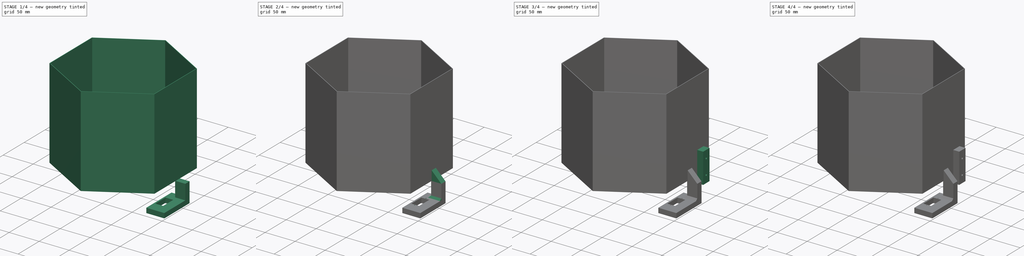
[diagram: build sequence overview — one tinted view per stage of 4, left to right]
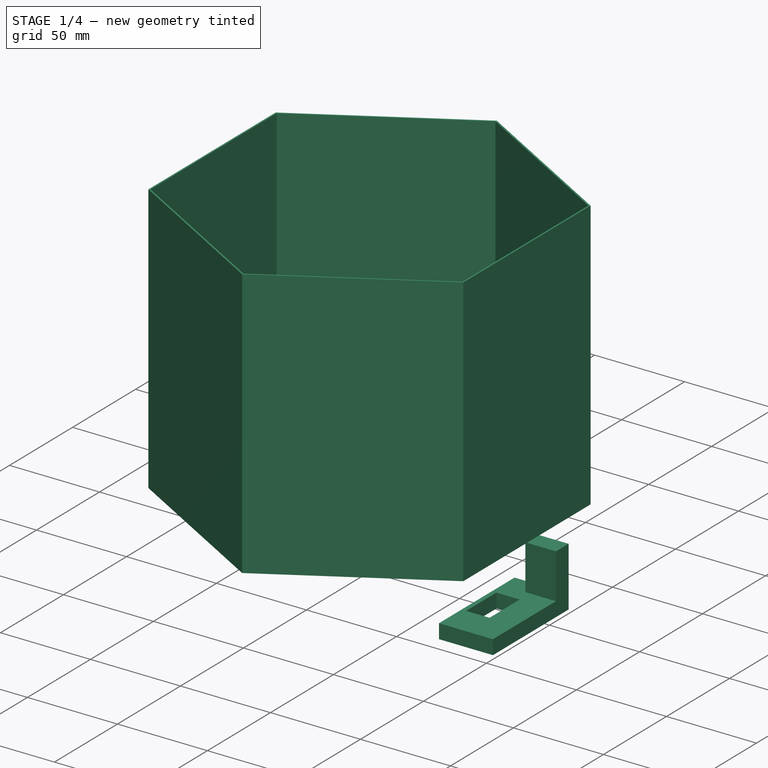
[diagram: stage 1 of 4 — iso view after this stage's code; geometry added in this stage tinted green]
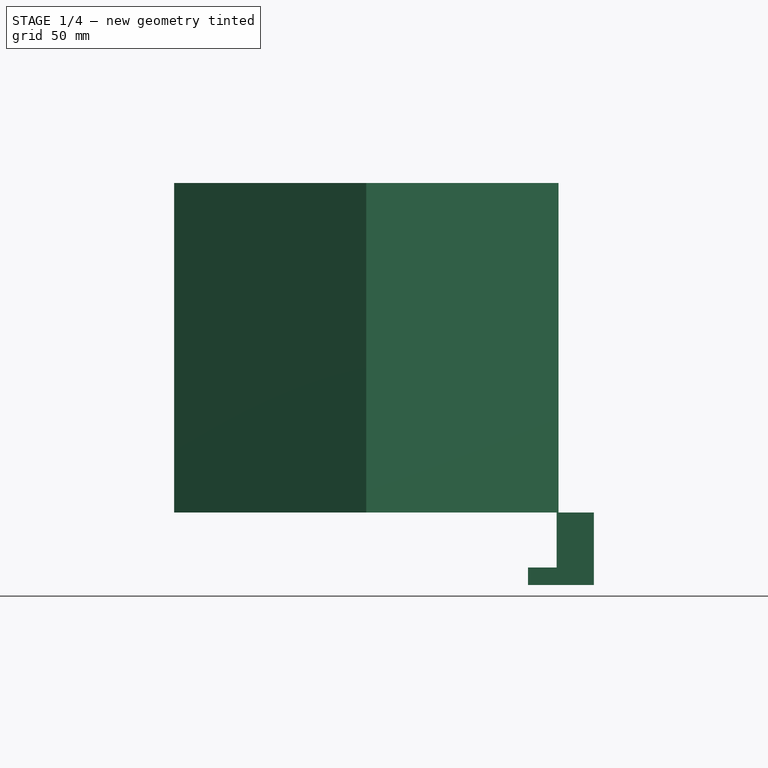
[diagram: stage 1 of 4 — front view after this stage's code; geometry added in this stage tinted green]
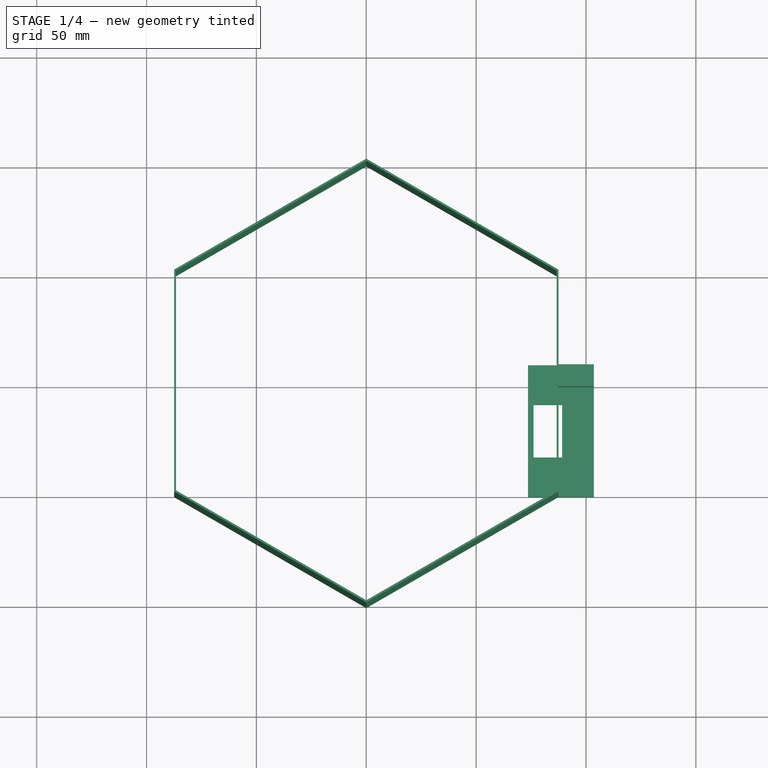
[diagram: stage 1 of 4 — top view after this stage's code; geometry added in this stage tinted green]
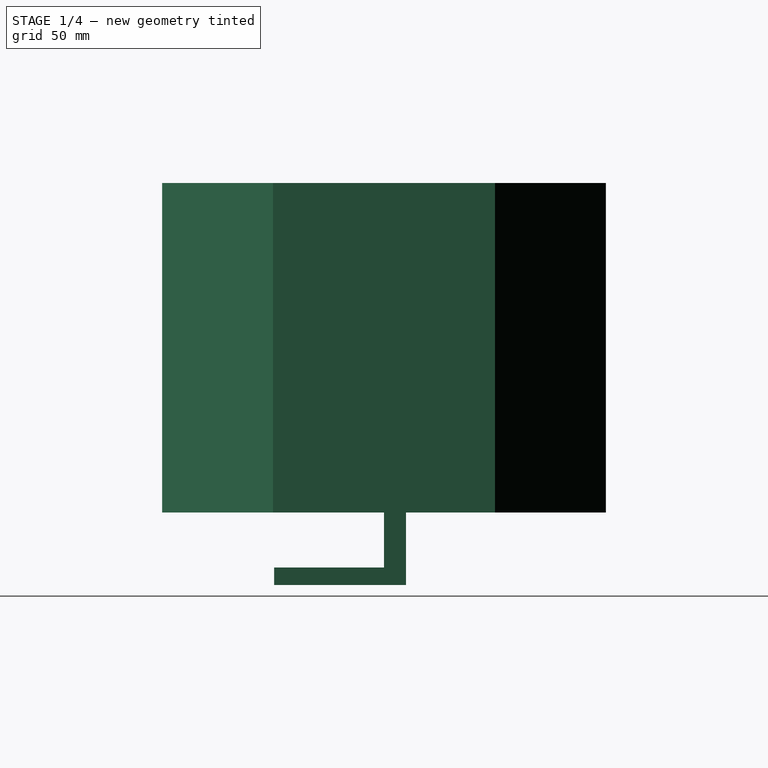
[diagram: stage 1 of 4 — right view after this stage's code; geometry added in this stage tinted green]
FCSTD DOCUMENT  (FreeCAD 0.20R29177 +426 (Git))
Label: ImageRecogBox-v2-cutinparts
License: All rights reserved
LicenseURL: http://en.wikipedia.org/wiki/All_rights_reserved
objects: Sketcher::SketchObject×12, PartDesign::Pad×7, PartDesign::Hole×4, PartDesign::CoordinateSystem×3, PartDesign::Chamfer×2, Part::FeaturePython×2, App::AnnotationLabel×2, PartDesign::Pocket×1, PartDesign::Body×1, App::DocumentObjectGroup×1
note: 46 computed .brp shape members not serialized (recipe doc carries the construction recipe); baked Part::Feature solids carry a one-line shape summary decoded from their .brp

FEATURE [Sketcher::SketchObject] Sketch
  FullyConstrained = true
  MapMode = 5
  Support = -> [XY_Plane]
  sketch-geometry (14):
    g0: LineSegment StartX=86.6025 StartY=50 StartZ=0 EndX=0 EndY=100 EndZ=0
    g1: LineSegment StartX=4.3e-15 StartY=100 StartZ=0 EndX=-86.6025 EndY=50 EndZ=0
    g2: LineSegment StartX=-86.6025 StartY=50 StartZ=0 EndX=-86.6025 EndY=-50 EndZ=0
    g3: LineSegment StartX=-86.6025 StartY=-50 StartZ=0 EndX=0 EndY=-100 EndZ=0
    g4: LineSegment StartX=0 StartY=-100 StartZ=0 EndX=86.6025 EndY=-50 EndZ=0
    g5: LineSegment StartX=86.6025 StartY=-50 StartZ=0 EndX=86.6025 EndY=50 EndZ=0
    g6: Circle CenterX=0 CenterY=0 CenterZ=0 NormalX=0 NormalY=0 NormalZ=1 AngleXU=0 Radius=100
    g7: LineSegment StartX=87.4686 StartY=-50.5 StartZ=0 EndX=87.4686 EndY=50.5 EndZ=0
    g8: LineSegment StartX=87.4686 StartY=50.5 StartZ=0 EndX=-1.42e-14 EndY=101 EndZ=0
    g9: LineSegment StartX=-1.48e-14 StartY=101 StartZ=0 EndX=-87.4686 EndY=50.5 EndZ=0
    g10: LineSegment StartX=-87.4686 StartY=50.5 StartZ=0 EndX=-87.4686 EndY=-50.5 EndZ=0
    g11: LineSegment StartX=-87.4686 StartY=-50.5 StartZ=0 EndX=0 EndY=-101 EndZ=0
    g12: LineSegment StartX=0 StartY=-101 StartZ=0 EndX=87.4686 EndY=-50.5 EndZ=0
    g13: Circle CenterX=0 CenterY=0 CenterZ=0 NormalX=0 NormalY=0 NormalZ=1 AngleXU=0 Radius=101
  constraints (33):
    c: Coincident(g0,g1)
    c: Coincident(g1,g2)
    c: Coincident(g2,g3)
    c: Coincident(g3,g4)
    c: Coincident(g4,g5)
    c: Coincident(g5,g0)
    c: Equal(g0, g1-g5) x5
    c: PointOnObject(g0,g6)
    c: PointOnObject(g1,g6)
    c: PointOnObject(g2,g6)
    c: PointOnObject(g3,g6)
    c: PointOnObject(g4,g6)
    c: PointOnObject(g5,g6)
    c: Coincident(g6,g-1)
    c: Vertical(g5)
    c: Coincident(g7,g8)
    c: Coincident(g8,g9)
    c: Coincident(g9,g10)
    c: Coincident(g10,g11)
    c: Coincident(g11,g12)
    c: Coincident(g12,g7)
    c: Equal(g7, g8-g12) x5
    c: PointOnObject(g7,g13)
    c: PointOnObject(g8,g13)
    c: PointOnObject(g9,g13)
    c: PointOnObject(g10,g13)
    c: PointOnObject(g11,g13)
    c: PointOnObject(g12,g13)
    c: Coincident(g13,g6)
    c: Vertical(g7)
    c: Diameter(g6) = 200
    c: DistanceY(g5,g5) = 100
    c: Diameter(g13) = 202
FEATURE [PartDesign::Pad] Pad
  Direction = (0,0,1)
  Length = 150
  Length2 = 10
  Profile = -> Sketch
  ReferenceAxis = -> Sketch [N_Axis]
  Type = 0
FEATURE [Sketcher::SketchObject] Sketch001
  ExternalGeometry = -> [Pad]
  FullyConstrained = true
  MapMode = 5
  Placement = pos=(0,0,0) rot=(1,0,0;3.14159rad)
  Support = -> [Pad]
  sketch-geometry (4):
    g0: LineSegment StartX=103.603 StartY=0 StartZ=0 EndX=86.6025 EndY=0 EndZ=0
    g1: LineSegment StartX=86.6025 StartY=0 StartZ=0 EndX=86.6025 EndY=-10 EndZ=0
    g2: LineSegment StartX=86.6025 StartY=-10 StartZ=0 EndX=103.603 EndY=-10 EndZ=0
    g3: LineSegment StartX=103.603 StartY=-10 StartZ=0 EndX=103.603 EndY=0 EndZ=0
  constraints (12):
    c: Coincident(g0,g1)
    c: Coincident(g1,g2)
    c: Coincident(g2,g3)
    c: Coincident(g3,g0)
    c: Horizontal(g0)
    c: Horizontal(g2)
    c: Vertical(g1)
    c: Vertical(g3)
    c: PointOnObject(g1,g-3)
    c: DistanceX(g2,g2) = 17
    c: DistanceY(g3,g3) = 10
    c: PointOnObject(g0,g-1)
FEATURE [PartDesign::Pad] Pad001
  BaseFeature = -> Pad
  Direction = (0,0,-1)
  Length = 25
  Length2 = 10
  Profile = -> Sketch001
  ReferenceAxis = -> Sketch001 [N_Axis]
  Type = 0
FEATURE [Sketcher::SketchObject] Sketch002
  ExternalGeometry = -> [Pad001]
  FullyConstrained = true
  MapMode = 5
  Placement = pos=(0,0,-25) rot=(1,0,0;3.14159rad)
  Support = -> [Pad001]
  sketch-geometry (4):
    g0: LineSegment StartX=103.603 StartY=-10 StartZ=0 EndX=73.6025 EndY=-10 EndZ=0
    g1: LineSegment StartX=73.6025 StartY=-10 StartZ=0 EndX=73.6025 EndY=50 EndZ=0
    g2: LineSegment StartX=73.6025 StartY=50 StartZ=0 EndX=103.603 EndY=50 EndZ=0
    g3: LineSegment StartX=103.603 StartY=50 StartZ=0 EndX=103.603 EndY=-10 EndZ=0
  constraints (11):
    c: Coincident(g0,g1)
    c: Coincident(g2,g3)
    c: Coincident(g3,g0)
    c: Horizontal(g0)
    c: Vertical(g3)
    c: Coincident(g0,g-4)
    c: Coincident(g2,g1)
    c: Horizontal(g2)
    c: Horizontal(g2,g-6)
    c: Vertical(g1)
    c: DistanceX(g0,g0) = 30
FEATURE [PartDesign::Pad] Pad002
  BaseFeature = -> Pad001
  Direction = (0,0,-1)
  Length = 8
  Length2 = 10
  Profile = -> Sketch002
  ReferenceAxis = -> Sketch002 [N_Axis]
  Type = 0
FEATURE [Sketcher::SketchObject] Sketch003
  ExternalGeometry = -> [Pad002]
  FullyConstrained = true
  MapMode = 5
  Placement = pos=(0,0,-25) rot=(0,0,1;0rad)
  Support = -> [Pad002]
  sketch-geometry (6):
    g0: LineSegment StartX=76.1025 StartY=-8 StartZ=0 EndX=89.1025 EndY=-8 EndZ=0
    g1: LineSegment StartX=89.1025 StartY=-8 StartZ=0 EndX=89.1025 EndY=-32 EndZ=0
    g2: LineSegment StartX=89.1025 StartY=-32 StartZ=0 EndX=76.1025 EndY=-32 EndZ=0
    g3: LineSegment StartX=76.1025 StartY=-32 StartZ=0 EndX=76.1025 EndY=-8 EndZ=0
    g4: GeomPoint X=82.6025 Y=-20 Z=0
    g5: GeomPoint X=88.6025 Y=-20 Z=0
  constraints (14):
    c: Coincident(g0,g1)
    c: Coincident(g1,g2)
    c: Coincident(g2,g3)
    c: Coincident(g3,g0)
    c: Horizontal(g0)
    c: Horizontal(g2)
    c: Vertical(g1)
    c: Vertical(g3)
    c: DistanceY(g1,g1) = 24
    c: DistanceX(g2,g2) = 13
    c: Symmetric(g1,g0,g4)
    c: Symmetric(g-5,g-3,g5)
    c: DistanceX(g4,g5) = 6
    c: Horizontal(g5,g4)
FEATURE [PartDesign::Pocket] Pocket
  BaseFeature = -> Pad002
  Direction = (0,0,-1)
  Length = 19
  Length2 = 5
  Profile = -> Sketch003
  ReferenceAxis = -> Sketch003 [N_Axis]
  Type = 1
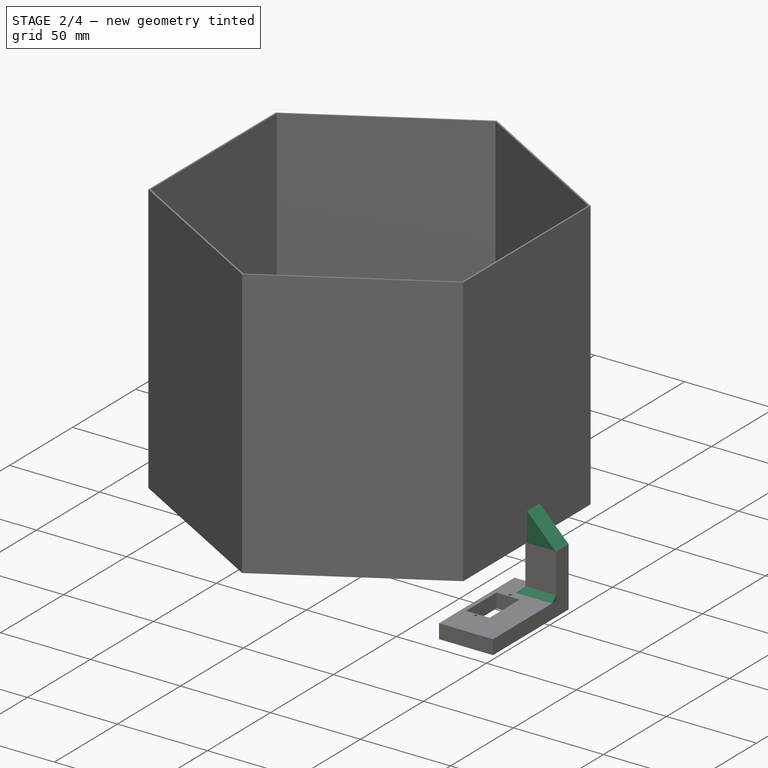
[diagram: stage 2 of 4 — iso view after this stage's code; geometry added in this stage tinted green]
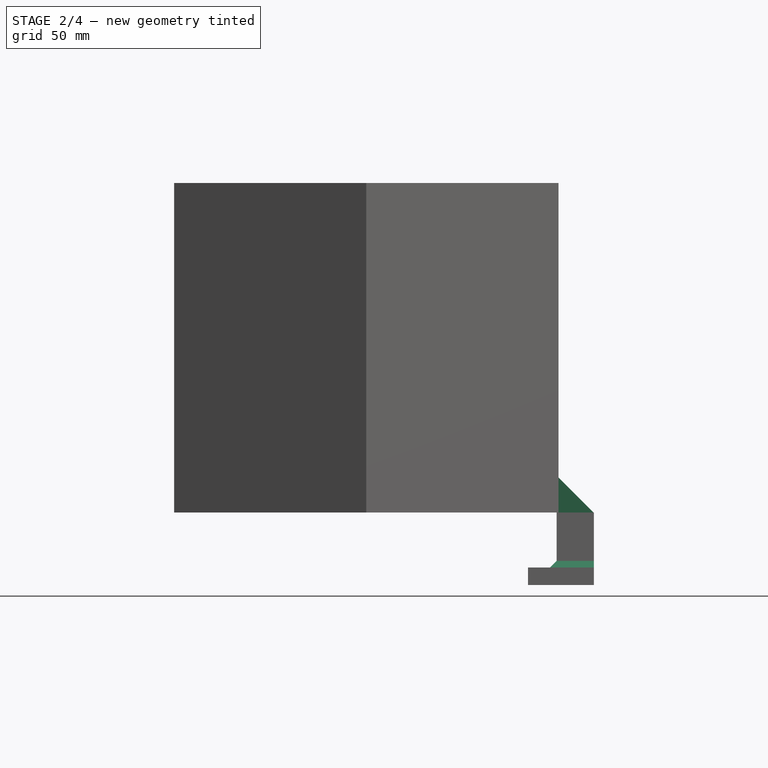
[diagram: stage 2 of 4 — front view after this stage's code; geometry added in this stage tinted green]
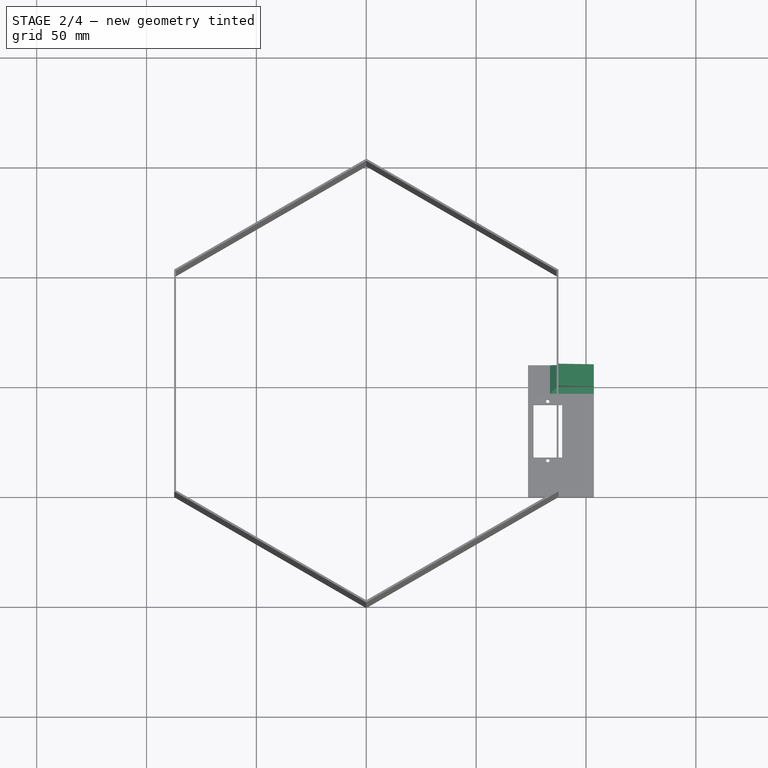
[diagram: stage 2 of 4 — top view after this stage's code; geometry added in this stage tinted green]
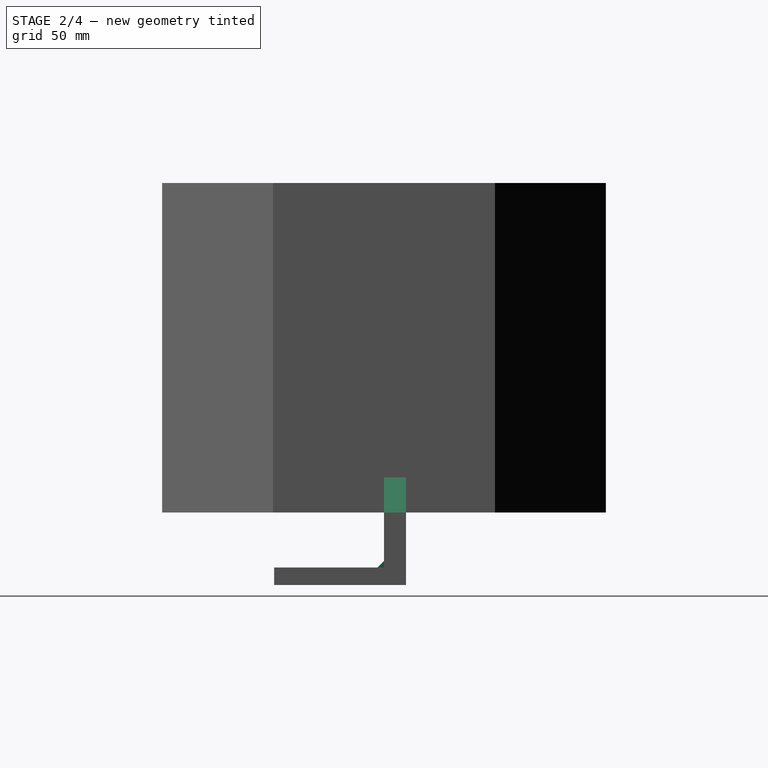
[diagram: stage 2 of 4 — right view after this stage's code; geometry added in this stage tinted green]
FEATURE [Sketcher::SketchObject] Sketch004
  ExternalGeometry = -> [Pocket]
  FullyConstrained = false
  MapMode = 5
  Placement = pos=(0,0,-25) rot=(0,0,1;0rad)
  Support = -> [Pocket]
  sketch-geometry (5):
    g0: GeomPoint X=82.6025 Y=-6.3796 Z=0
    g1: GeomPoint X=82.6025 Y=-33.3796 Z=0
    g2: Circle CenterX=82.6025 CenterY=-6.3796 CenterZ=0 NormalX=0 NormalY=0 NormalZ=1 AngleXU=0 Radius=1
    g3: Circle CenterX=82.6025 CenterY=-33.3796 CenterZ=0 NormalX=0 NormalY=0 NormalZ=1 AngleXU=0 Radius=1
    g4: GeomPoint X=82.6025 Y=-20 Z=0
  constraints (8):
    c: DistanceY(g1,g0) = 27
    c: Coincident(g2,g0)
    c: Coincident(g3,g1)
    c: Equal(g3,g2)
    c: Diameter(g2) = 2
    c: Symmetric(g-6,g-5,g4)
    c: Vertical(g2,g3)
    c: Vertical(g3,g4)
FEATURE [PartDesign::Hole] Hole
  BaseFeature = -> Pocket
  CustomThreadClearance = 0
  Depth = 25
  DepthType = 0
  Diameter = 1.6
  DrillForDepth = false
  DrillPoint = 1
  DrillPointAngle = 118
  HoleCutCountersinkAngle = 90
  HoleCutCustomValues = false
  HoleCutDepth = 0
  HoleCutDiameter = 6.1
  HoleCutType = 0
  ModelThread = false
  Profile = -> Sketch004
  Tapered = false
  TaperedAngle = 90
  ThreadClass = 0
  ThreadDepth = 25
  ThreadDepthType = 0
  ThreadDirection = 0
  ThreadFit = 0
  ThreadSize = 6
  ThreadType = 1
  Threaded = true
  UseCustomThreadClearance = false
FEATURE [PartDesign::CoordinateSystem] LCS_1
  AttacherType = Attacher::AttachEngine3D
  MapMode = 45
  Placement = pos=(82.6025,-6.3796,-25) rot=(0,0,1;0rad)
  Support = -> [Hole]
FEATURE [PartDesign::CoordinateSystem] LCS_2  label="LCS_origin"
  AttacherType = Attacher::AttachEngine3D
FEATURE [PartDesign::Chamfer] Chamfer
  Angle = 45
  Base = -> Hole [Edge4]
  BaseFeature = -> Hole
  ChamferType = 0
  FlipDirection = false
  Size = 16
  Size2 = 1
  SupportTransform = false
  UseAllEdges = false
FEATURE [PartDesign::Chamfer] Chamfer001
  Angle = 45
  Base = -> Chamfer [Edge12,Edge49]
  BaseFeature = -> Chamfer
  ChamferType = 0
  FlipDirection = false
  Size = 3
  Size2 = 1
  SupportTransform = false
  UseAllEdges = false
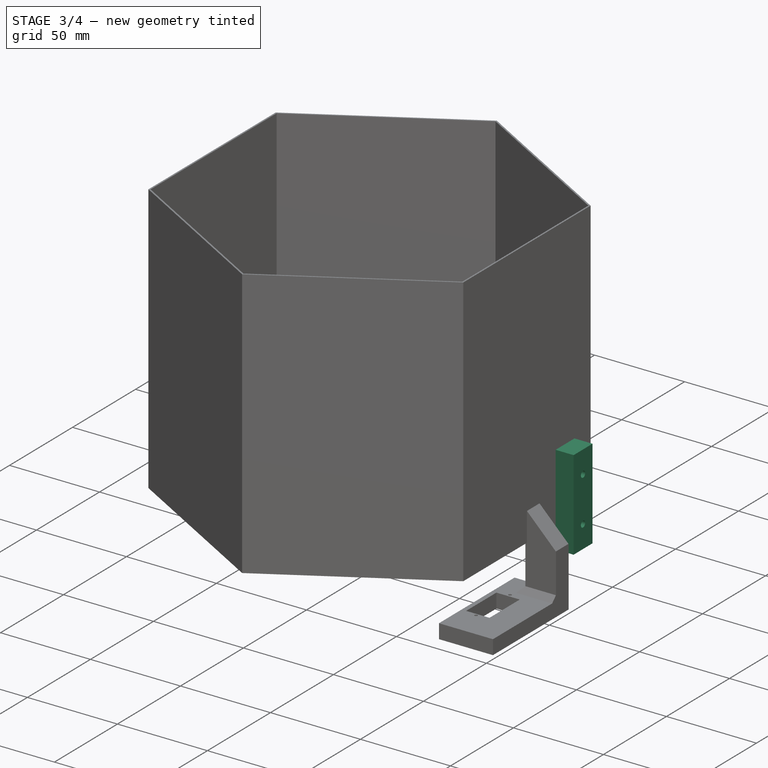
[diagram: stage 3 of 4 — iso view after this stage's code; geometry added in this stage tinted green]
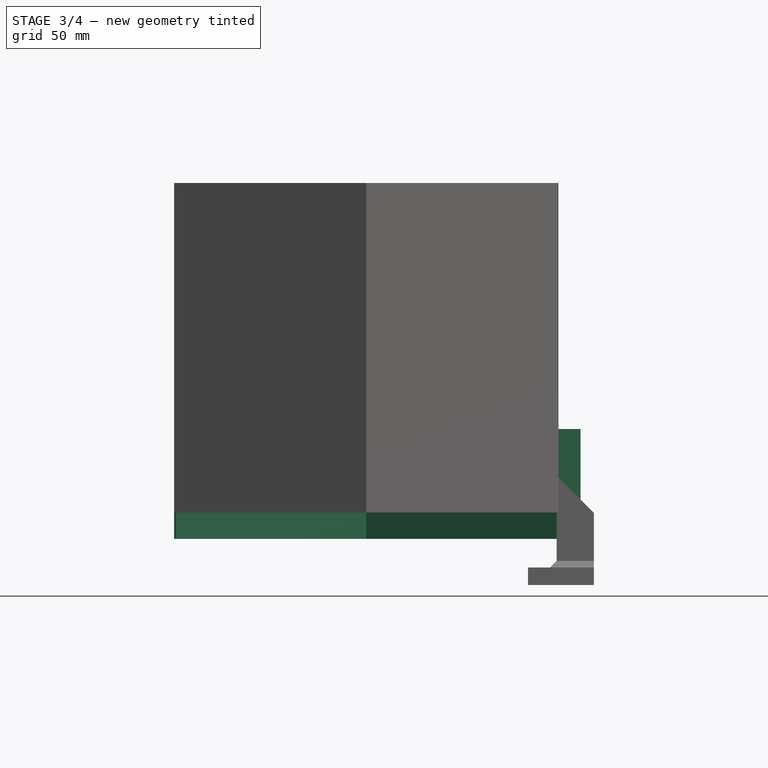
[diagram: stage 3 of 4 — front view after this stage's code; geometry added in this stage tinted green]
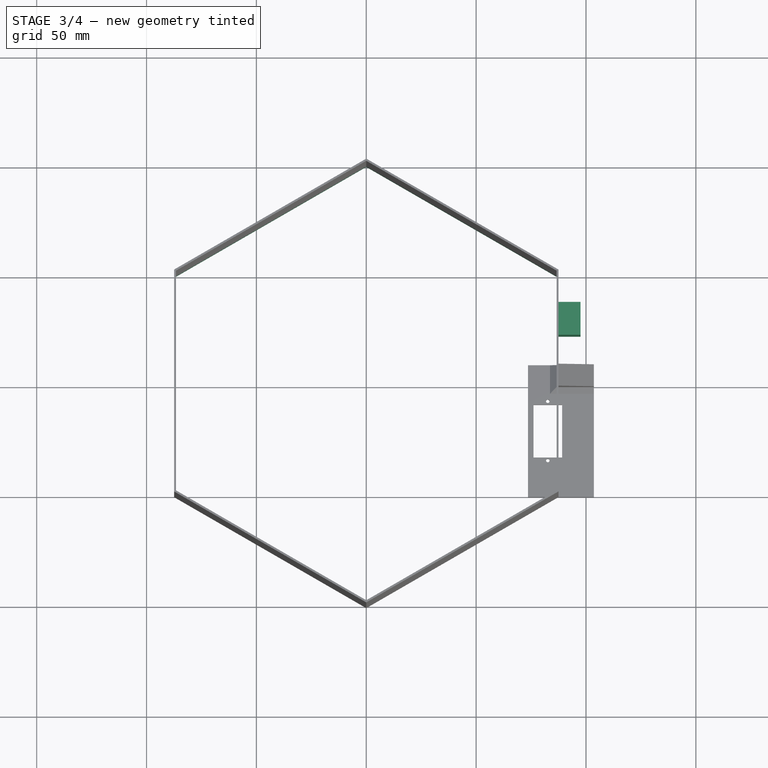
[diagram: stage 3 of 4 — top view after this stage's code; geometry added in this stage tinted green]
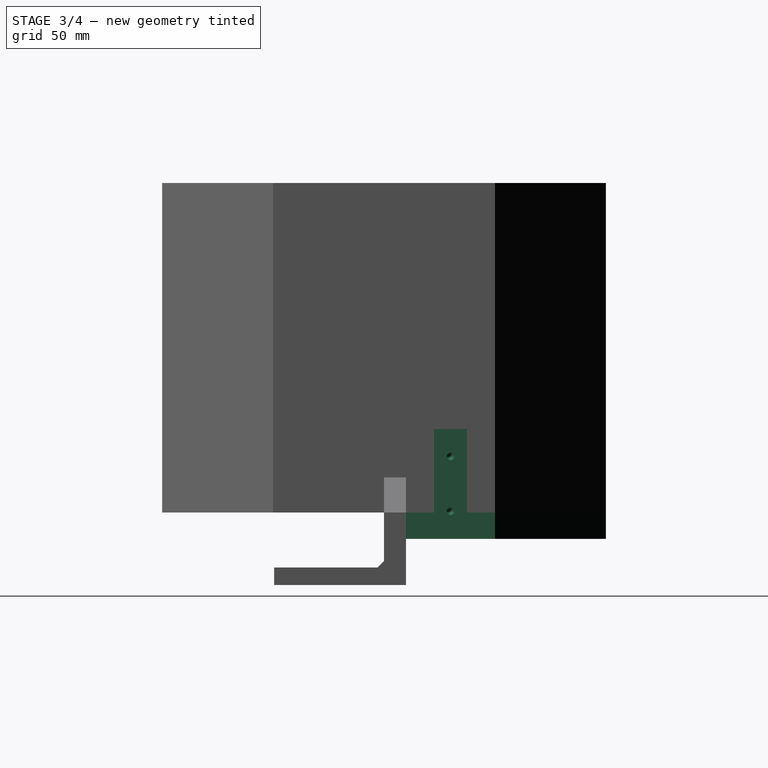
[diagram: stage 3 of 4 — right view after this stage's code; geometry added in this stage tinted green]
FEATURE [Sketcher::SketchObject] Sketch005
  ExternalGeometry = -> [Chamfer001]
  FullyConstrained = true
  MapMode = 5
  Placement = pos=(0,0,0) rot=(1,0,0;3.14159rad)
  Support = -> [Chamfer001]
  sketch-geometry (8):
    g0: LineSegment StartX=86.6025 StartY=-10 StartZ=0 EndX=86.6025 EndY=-50 EndZ=0
    g1: LineSegment StartX=86.6025 StartY=-50 StartZ=0 EndX=0 EndY=-100 EndZ=0
    g2: LineSegment StartX=0 StartY=-100 StartZ=0 EndX=-86.6025 EndY=-50 EndZ=0
    g3: LineSegment StartX=-86.6025 StartY=-50 StartZ=0 EndX=-87.4686 EndY=-50.5 EndZ=0
    g4: LineSegment StartX=-87.4686 StartY=-50.5 StartZ=0 EndX=-1.42e-14 EndY=-101 EndZ=0
    g5: LineSegment StartX=-1.42e-14 StartY=-101 StartZ=0 EndX=87.4686 EndY=-50.5 EndZ=0
    g6: LineSegment StartX=87.4686 StartY=-50.5 StartZ=0 EndX=87.4686 EndY=-10 EndZ=0
    g7: LineSegment StartX=87.4686 StartY=-10 StartZ=0 EndX=86.6025 EndY=-10 EndZ=0
  constraints (16):
    c: Coincident(g-7,g0)
    c: Coincident(g0,g-7)
    c: Coincident(g0,g1)
    c: Coincident(g1,g-4)
    c: Coincident(g1,g2)
    c: Coincident(g2,g-3)
    c: Coincident(g2,g3)
    c: Coincident(g3,g-5)
    c: Coincident(g3,g4)
    c: Coincident(g4,g-6)
    c: Coincident(g4,g5)
    c: Coincident(g5,g-8)
    c: Coincident(g5,g6)
    c: Coincident(g6,g-8)
    c: Coincident(g6,g7)
    c: Coincident(g7,g0)
FEATURE [PartDesign::Pad] Pad003
  BaseFeature = -> Chamfer001
  Direction = (0,0,-1)
  Length = 12
  Length2 = 10
  Profile = -> Sketch005
  ReferenceAxis = -> Sketch005 [N_Axis]
  Type = 0
FEATURE [Sketcher::SketchObject] Sketch006
  ExternalGeometry = -> [Pad003]
  FullyConstrained = true
  MapMode = 5
  Placement = pos=(87.4686,0,0) rot=(0.57735,0.57735,0.57735;2.0944rad)
  Support = -> [Pad003]
  sketch-geometry (6):
    g0: GeomPoint X=30.25 Y=-12 Z=0
    g1: LineSegment StartX=37.75 StartY=-12 StartZ=0 EndX=22.75 EndY=-12 EndZ=0
    g2: LineSegment StartX=22.75 StartY=-12 StartZ=0 EndX=22.75 EndY=38 EndZ=0
    g3: LineSegment StartX=22.75 StartY=38 StartZ=0 EndX=37.75 EndY=38 EndZ=0
    g4: LineSegment StartX=37.75 StartY=38 StartZ=0 EndX=37.75 EndY=-12 EndZ=0
    g5: GeomPoint X=22.75 Y=13 Z=0
  constraints (13):
    c: Symmetric(g-3,g-3,g0)
    c: Coincident(g1,g2)
    c: Coincident(g2,g3)
    c: Coincident(g3,g4)
    c: Coincident(g4,g1)
    c: Horizontal(g1)
    c: Horizontal(g3)
    c: Vertical(g2)
    c: Vertical(g4)
    c: Symmetric(g1,g1,g0)
    c: DistanceX(g1,g1) = 15
    c: DistanceY(g4,g4) = 50
    c: Symmetric(g2,g1,g5)
FEATURE [PartDesign::Pad] Pad004
  BaseFeature = -> Pad003
  Direction = (1,0,0)
  Length = 10
  Length2 = 10
  Profile = -> Sketch006
  ReferenceAxis = -> Sketch006 [N_Axis]
  Type = 0
FEATURE [Sketcher::SketchObject] Sketch007
  ExternalGeometry = -> [Pad004]
  FullyConstrained = false
  MapMode = 5
  Placement = pos=(97.4686,0,0) rot=(0.57735,0.57735,0.57735;2.0944rad)
  Support = -> [Pad004]
  sketch-geometry (3):
    g0: Circle CenterX=30.25 CenterY=25.5 CenterZ=0 NormalX=0 NormalY=0 NormalZ=1 AngleXU=0 Radius=1.58506
    g1: GeomPoint X=22.75 Y=13 Z=0
    g2: Circle CenterX=30.25 CenterY=0.5 CenterZ=0 NormalX=0 NormalY=0 NormalZ=1 AngleXU=0 Radius=1.58506
  constraints (3):
    c: Symmetric(g-3,g-3,g1)
    c: Symmetric(g-4,g1,g0)
    c: Symmetric(g-4,g1,g2)
FEATURE [PartDesign::Hole] Hole001
  BaseFeature = -> Pad004
  CustomThreadClearance = 0
  Depth = 6
  DepthType = 0
  Diameter = 3.4
  DrillForDepth = false
  DrillPoint = 1
  DrillPointAngle = 118
  HoleCutCountersinkAngle = 90
  HoleCutCustomValues = false
  HoleCutDepth = 0
  HoleCutDiameter = 6.1
  HoleCutType = 0
  ModelThread = false
  Profile = -> Sketch007
  Tapered = false
  TaperedAngle = 90
  ThreadClass = 0
  ThreadDepth = 6
  ThreadDepthType = 0
  ThreadDirection = 0
  ThreadFit = 0
  ThreadSize = 9
  ThreadType = 1
  Threaded = false
  UseCustomThreadClearance = false
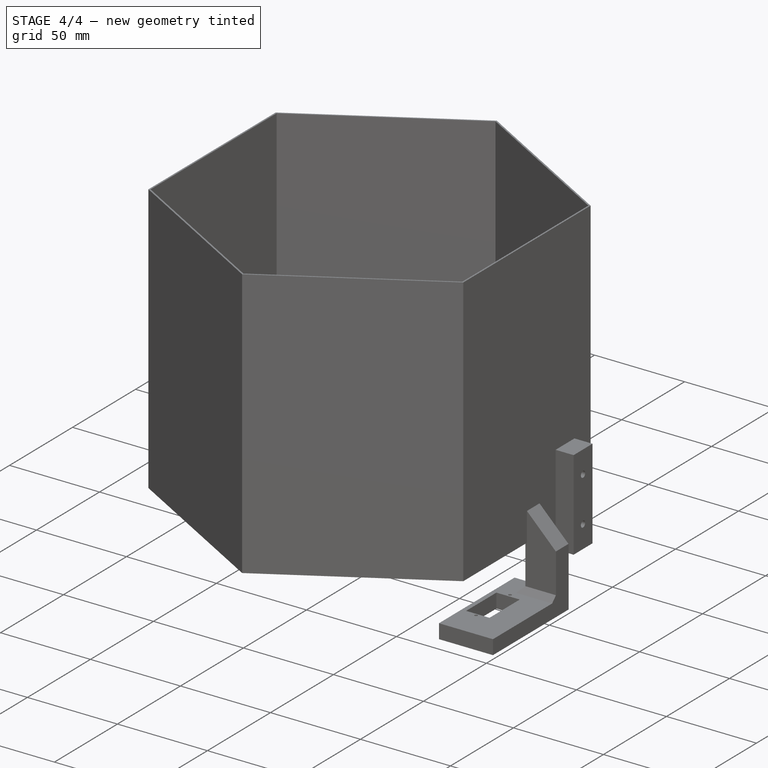
[diagram: stage 4 of 4 — iso view after this stage's code; geometry added in this stage tinted green]
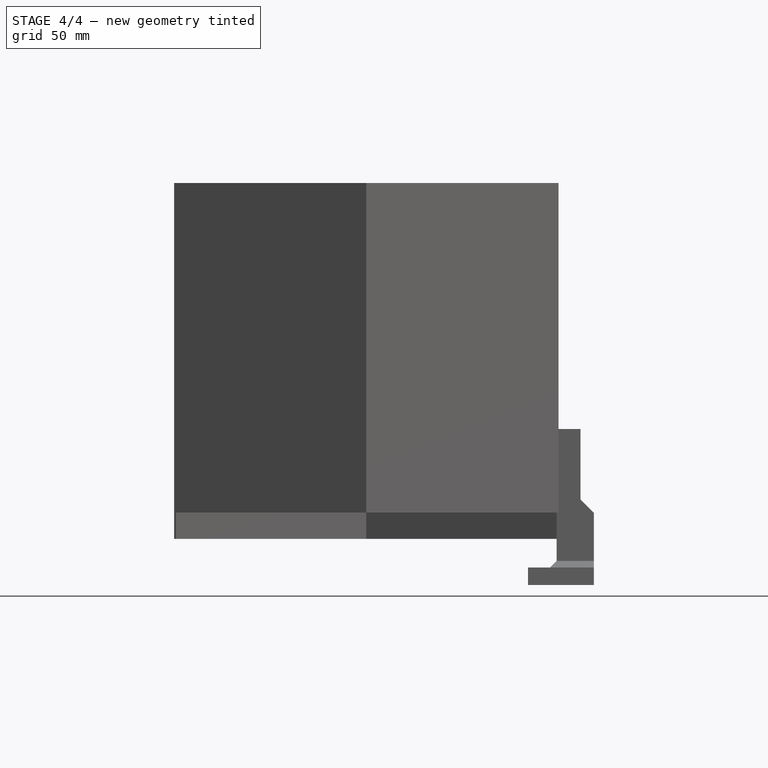
[diagram: stage 4 of 4 — front view after this stage's code; geometry added in this stage tinted green]
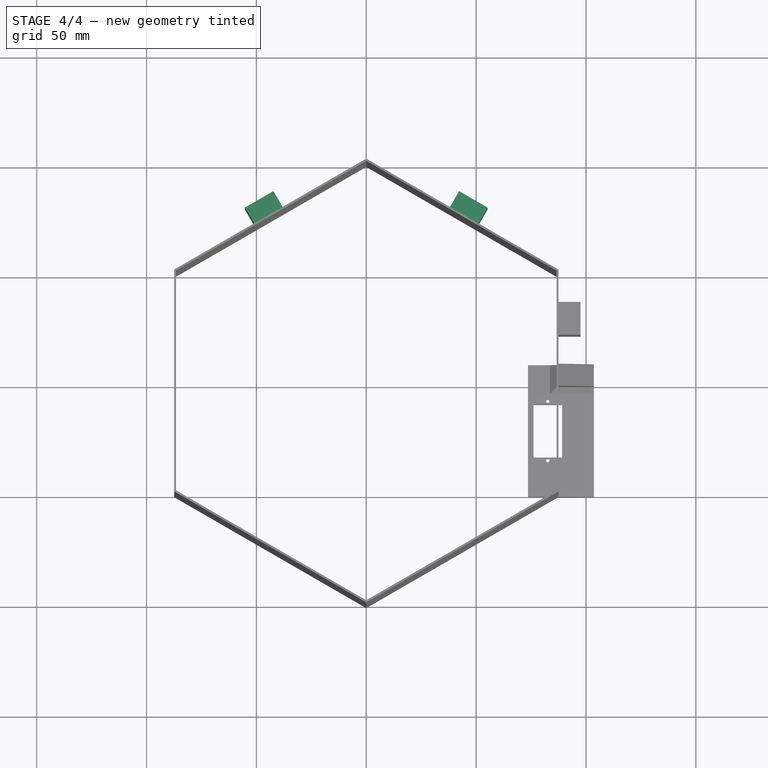
[diagram: stage 4 of 4 — top view after this stage's code; geometry added in this stage tinted green]
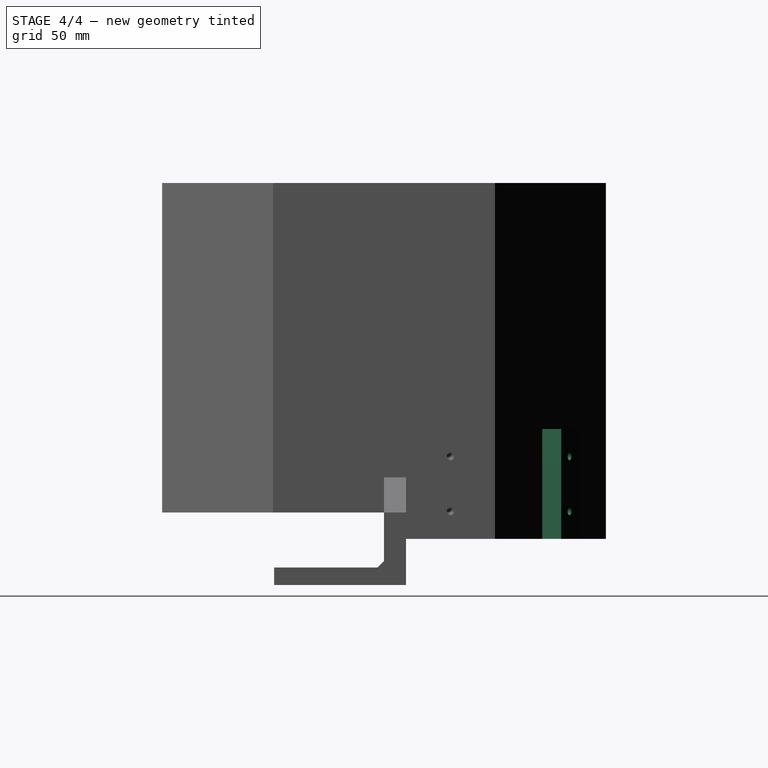
[diagram: stage 4 of 4 — right view after this stage's code; geometry added in this stage tinted green]
FEATURE [PartDesign::CoordinateSystem] LCS_3
  AttacherType = Attacher::AttachEngine3D
  MapMode = 11
  Placement = pos=(97.4686,30.25,25.5) rot=(0.57735,0.57735,0.57735;2.0944rad)
  Support = -> [Hole001]
FEATURE [Part::FeaturePython] DistPoints  # WARN: FeaturePython — macro-defined, semantics opaque (R4)
FEATURE [App::AnnotationLabel] MeasureLbl
  BasePosition = (97.4686,37.75,-2)
  LabelText = D = 20,00 mm
  TextPosition = (0,0,0)
FEATURE [Sketcher::SketchObject] Sketch008
  ExternalGeometry = -> [Hole001]
  FullyConstrained = true
  MapMode = 5
  Placement = pos=(43.7343,75.75,0) rot=(0.186157,0.694747,0.694747;2.77349rad)
  Support = -> [Hole001]
  sketch-geometry (5):
    g0: GeomPoint X=-2.7e-15 Y=-12 Z=0
    g1: LineSegment StartX=-7.5 StartY=38 StartZ=0 EndX=7.5 EndY=38 EndZ=0
    g2: LineSegment StartX=7.5 StartY=38 StartZ=0 EndX=7.5 EndY=-12 EndZ=0
    g3: LineSegment StartX=7.5 StartY=-12 StartZ=0 EndX=-7.5 EndY=-12 EndZ=0
    g4: LineSegment StartX=-7.5 StartY=-12 StartZ=0 EndX=-7.5 EndY=38 EndZ=0
  constraints (12):
    c: Symmetric(g-3,g-3,g0)
    c: Coincident(g1,g2)
    c: Coincident(g2,g3)
    c: Coincident(g3,g4)
    c: Coincident(g4,g1)
    c: Horizontal(g1)
    c: Horizontal(g3)
    c: Vertical(g2)
    c: Vertical(g4)
    c: DistanceX(g1,g1) = 15
    c: DistanceY(g2,g2) = 50
    c: Symmetric(g3,g2,g0)
FEATURE [PartDesign::Pad] Pad005
  BaseFeature = -> Hole001
  Direction = (0.5,0.866025,-1e-16)
  Length = 10
  Length2 = 10
  Profile = -> Sketch008
  ReferenceAxis = -> Sketch008 [N_Axis]
  Type = 0
FEATURE [Sketcher::SketchObject] Sketch009
  ExternalGeometry = -> [Pad005]
  FullyConstrained = false
  MapMode = 5
  Placement = pos=(48.7343,84.4103,0) rot=(0.186157,0.694747,0.694747;2.77349rad)
  Support = -> [Pad005]
  sketch-geometry (3):
    g0: Circle CenterX=-1.06e-14 CenterY=25.5 CenterZ=0 NormalX=0 NormalY=0 NormalZ=1 AngleXU=0 Radius=1.89055
    g1: GeomPoint X=-7.5 Y=13 Z=0
    g2: Circle CenterX=-1.04e-14 CenterY=0.5 CenterZ=0 NormalX=0 NormalY=0 NormalZ=1 AngleXU=0 Radius=1.89055
  constraints (3):
    c: Symmetric(g-3,g-4,g1)
    c: Symmetric(g-3,g1,g0)
    c: Symmetric(g1,g-4,g2)
FEATURE [PartDesign::Hole] Hole002
  BaseFeature = -> Pad005
  CustomThreadClearance = 0
  Depth = 6
  DepthType = 0
  Diameter = 3.4
  DrillForDepth = false
  DrillPoint = 1
  DrillPointAngle = 118
  HoleCutCountersinkAngle = 90
  HoleCutCustomValues = false
  HoleCutDepth = 0
  HoleCutDiameter = 6.1
  HoleCutType = 0
  ModelThread = false
  Profile = -> Sketch009
  Tapered = false
  TaperedAngle = 90
  ThreadClass = 0
  ThreadDepth = 6
  ThreadDepthType = 0
  ThreadDirection = 0
  ThreadFit = 0
  ThreadSize = 9
  ThreadType = 1
  Threaded = false
  UseCustomThreadClearance = false
FEATURE [Sketcher::SketchObject] Sketch010
  ExternalGeometry = -> [Hole002]
  FullyConstrained = true
  MapMode = 5
  Placement = pos=(-43.7343,75.75,0) rot=(-0.186157,0.694747,0.694747;3.50969rad)
  Support = -> [Hole002]
  sketch-geometry (5):
    g0: GeomPoint X=5.6e-15 Y=-12 Z=0
    g1: LineSegment StartX=-7.5 StartY=-12 StartZ=0 EndX=7.5 EndY=-12 EndZ=0
    g2: LineSegment StartX=7.5 StartY=-12 StartZ=0 EndX=7.5 EndY=38 EndZ=0
    g3: LineSegment StartX=7.5 StartY=38 StartZ=0 EndX=-7.5 EndY=38 EndZ=0
    g4: LineSegment StartX=-7.5 StartY=38 StartZ=0 EndX=-7.5 EndY=-12 EndZ=0
  constraints (12):
    c: Symmetric(g-3,g-3,g0)
    c: Coincident(g1,g2)
    c: Coincident(g2,g3)
    c: Coincident(g3,g4)
    c: Coincident(g4,g1)
    c: Horizontal(g1)
    c: Horizontal(g3)
    c: Vertical(g2)
    c: Vertical(g4)
    c: Symmetric(g1,g1,g0)
    c: DistanceY(g2,g2) = 50
    c: DistanceX(g3,g3) = 15
FEATURE [PartDesign::Pad] Pad006
  BaseFeature = -> Hole002
  Direction = (-0.5,0.866025,0)
  Length = 10
  Length2 = 10
  Profile = -> Sketch010
  ReferenceAxis = -> Sketch010 [N_Axis]
  Type = 0
FEATURE [Sketcher::SketchObject] Sketch011
  ExternalGeometry = -> [Pad006]
  FullyConstrained = false
  MapMode = 5
  Placement = pos=(-48.7343,84.4103,0) rot=(-0.186157,0.694747,0.694747;3.50969rad)
  Support = -> [Pad006]
  sketch-geometry (3):
    g0: GeomPoint X=-7.5 Y=13 Z=0
    g1: Circle CenterX=3.62e-14 CenterY=25.5 CenterZ=0 NormalX=0 NormalY=0 NormalZ=1 AngleXU=0 Radius=1.24684
    g2: Circle CenterX=3.54e-14 CenterY=0.5 CenterZ=0 NormalX=0 NormalY=0 NormalZ=1 AngleXU=0 Radius=1.24684
  constraints (3):
    c: Symmetric(g-3,g-4,g0)
    c: Symmetric(g-3,g0,g1)
    c: Symmetric(g-4,g0,g2)
FEATURE [PartDesign::Hole] Hole003
  BaseFeature = -> Pad006
  CustomThreadClearance = 0
  Depth = 6
  DepthType = 0
  Diameter = 3.4
  DrillForDepth = false
  DrillPoint = 1
  DrillPointAngle = 118
  HoleCutCountersinkAngle = 90
  HoleCutCustomValues = false
  HoleCutDepth = 0
  HoleCutDiameter = 6.1
  HoleCutType = 0
  ModelThread = false
  Profile = -> Sketch011
  Tapered = false
  TaperedAngle = 90
  ThreadClass = 0
  ThreadDepth = 6
  ThreadDepthType = 0
  ThreadDirection = 0
  ThreadFit = 0
  ThreadSize = 9
  ThreadType = 1
  Threaded = false
  UseCustomThreadClearance = false
FEATURE [PartDesign::Body] Body  label="ImageRecogBox-body"
  Group = -> [Sketch,Pad,Sketch001,Pad001,Sketch002,Pad002,Sketch003,Pocket,Sketch004,Hole,LCS_1,LCS_2,Chamfer,Chamfer001,Sketch005,Pad003,Sketch006,Pad004,Sketch007,Hole001,LCS_3,Sketch008,Pad005,Sketch009,Hole002,Sketch010,Pad006,Sketch011,Hole003]
  Origin = -> Origin
  Tip = -> Hole003
FEATURE [Part::FeaturePython] DistPoints001  # WARN: FeaturePython — macro-defined, semantics opaque (R4)
FEATURE [App::AnnotationLabel] MeasureLbl001
  BasePosition = (42.2391,88.1603,13)
  LabelText = D = 50,00 mm
  TextPosition = (0,0,0)
FEATURE [App::DocumentObjectGroup] Measures
  Group = -> [DistPoints,MeasureLbl,DistPoints001,MeasureLbl001]
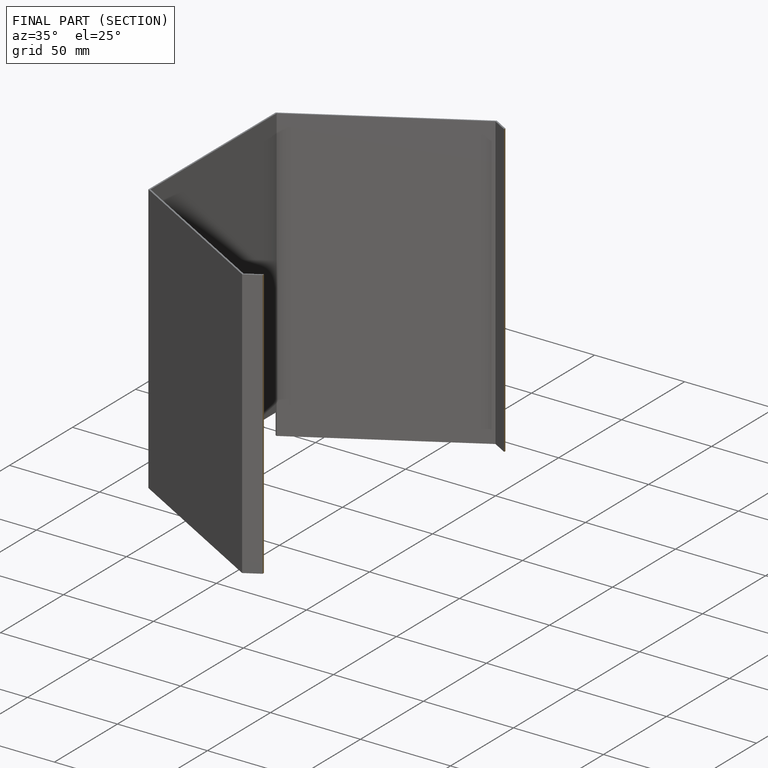
[diagram: finished part — half-section view (interior)]
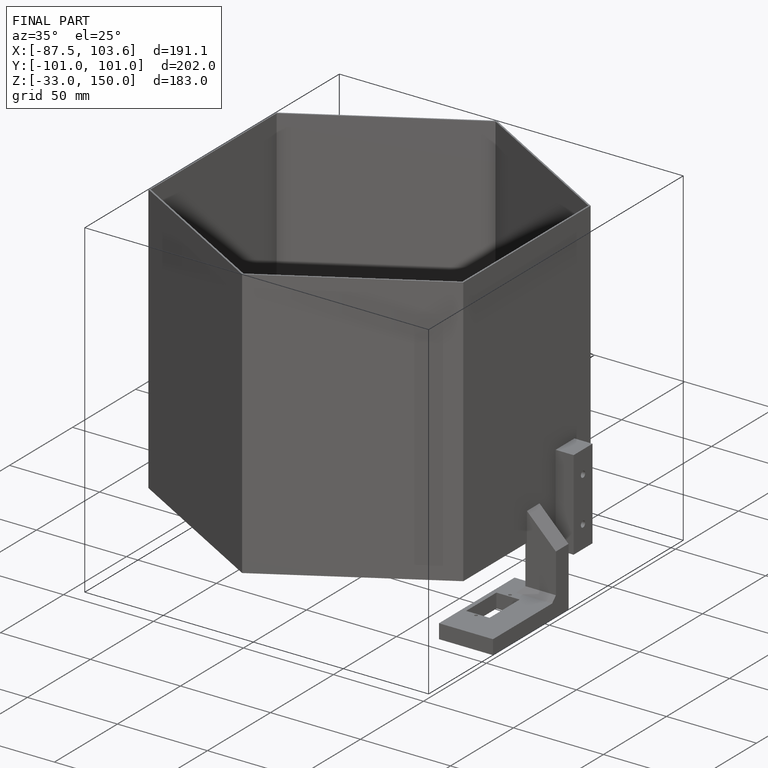
[diagram: finished part — iso view with bounding-box wireframe]
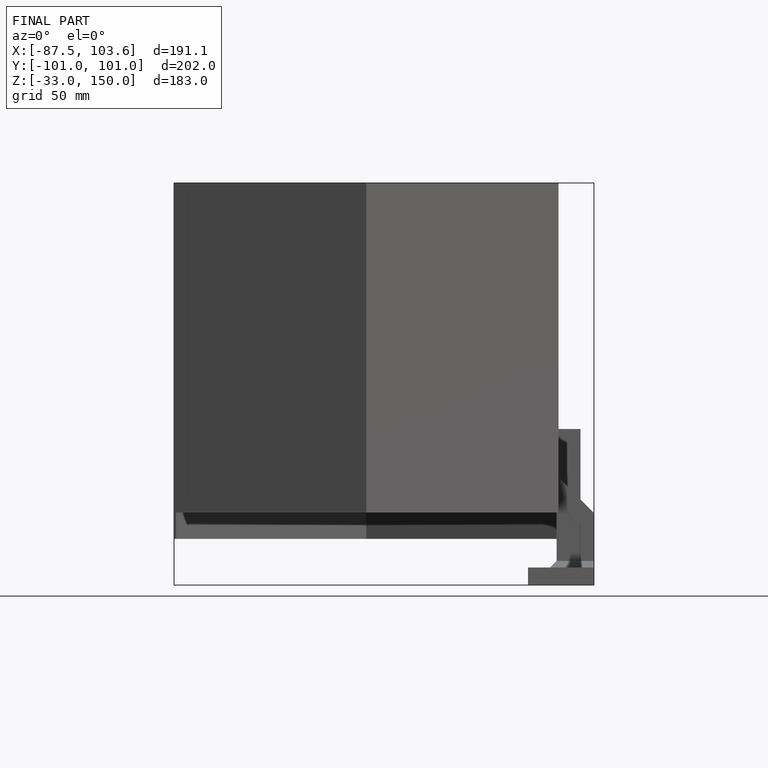
[diagram: finished part — front view with bounding-box wireframe]
